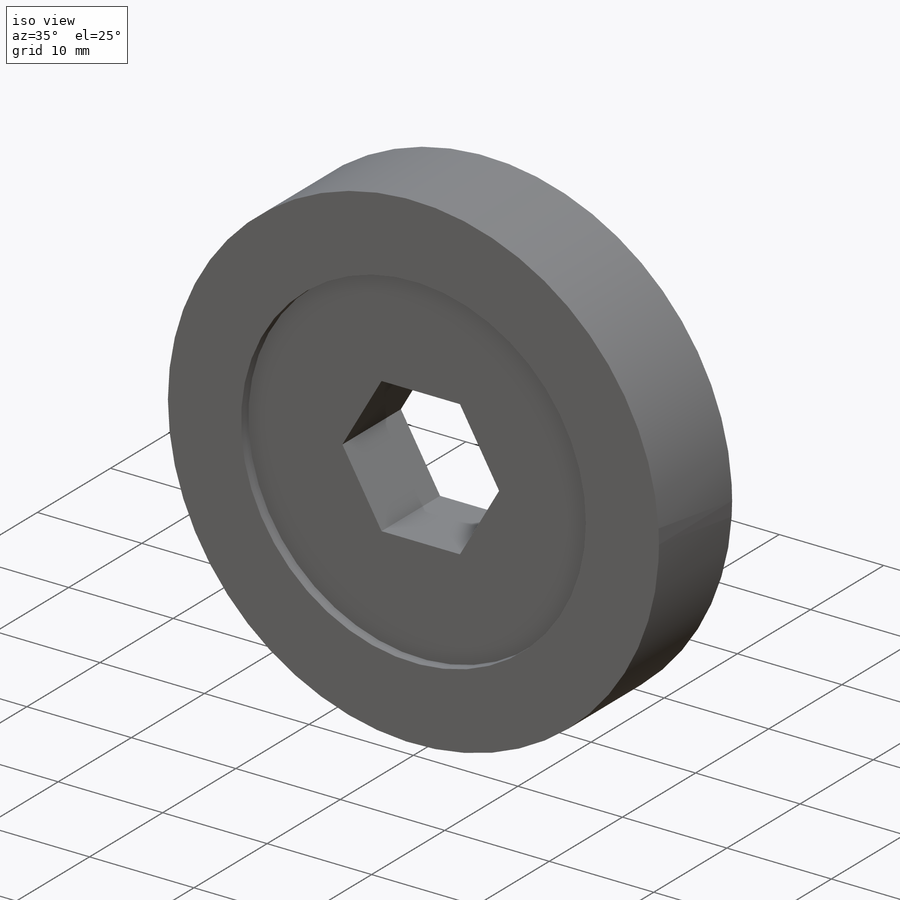
[diagram: iso view]
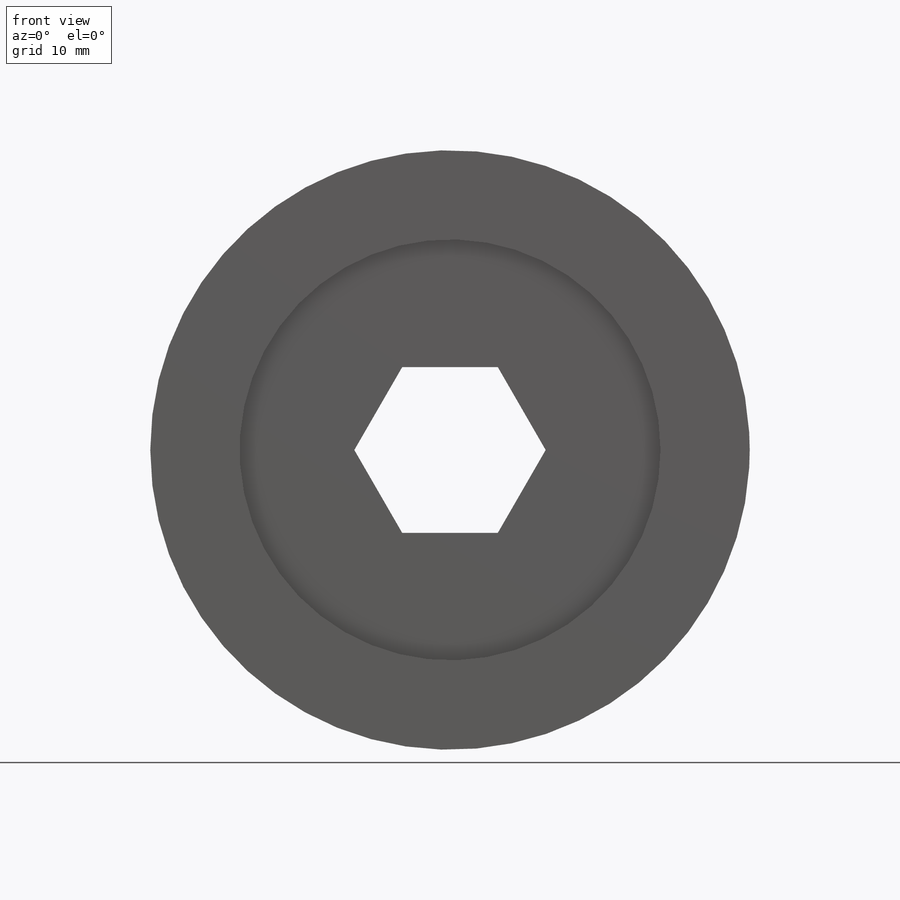
[diagram: front view]
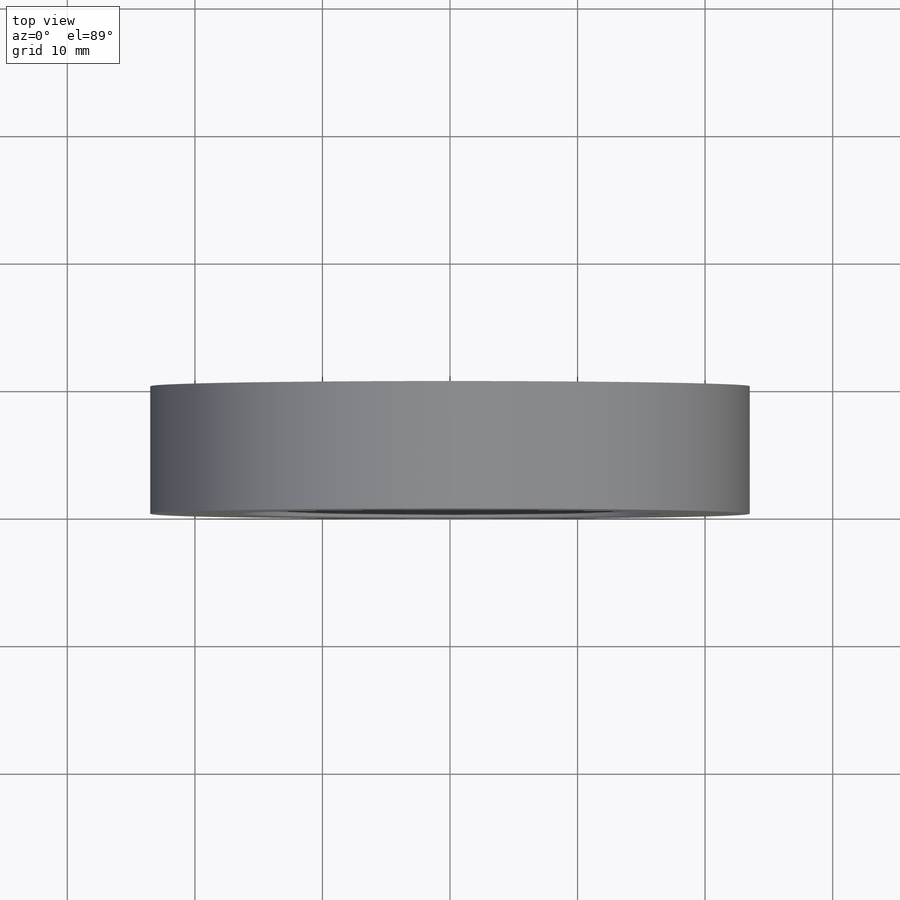
[diagram: top view]
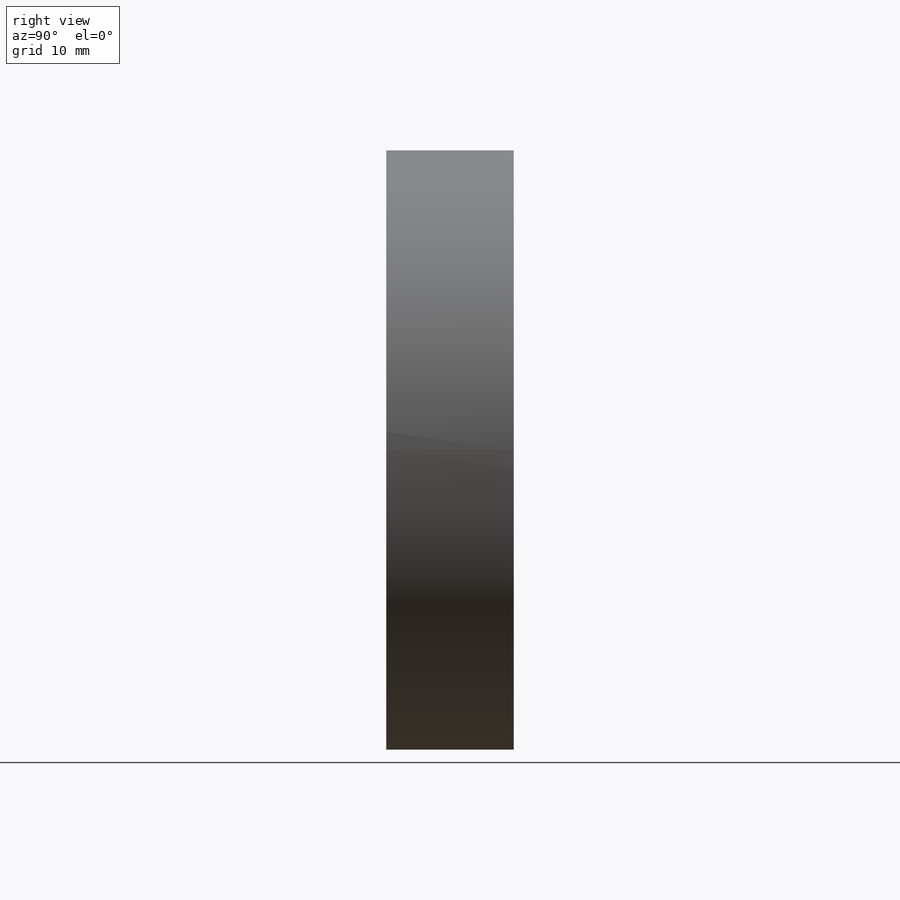
[diagram: right view]
SOLIDWORKS PART (.sldprt)
format: sldprt  version: not decoded by parser v0  size: 179,712 bytes
history: native  units: mm
features: plane x3, sketch x3, cut_extrude x2, material x1, extrude x1, mirror x1, pattern_linear x1 (+10 scaffold rows collapsed)
feature tree (22):
  scaffold x10  (default folders/planes/origin — collapsed)
  material  "Matériau <non spécifié>"
  plane  "Plan de face"
  plane  "Plan de dessus"
  plane  "Plan de droite"
  sketch  "Esquisse1"  dims[D1=47.0mm D2=6.0mm D3=~22.049115mm]
  extrude  "Boss.-Extru.1"  Depth=10mm
  sketch  "Esquisse3"  dims[c1.D1=15.0mm c1.D4=15.0mm c2.D1=15.0mm c2.D2=~15.597037mm c3.D2=60.0deg c3.D3=~12.016085mm c4.D3=60.0deg]
  cut_extrude  "Enlèv. mat.-Extru.1"  Depth=10mm
  mirror  "Symétrie1"
  sketch  "Esquisse4"  dims[D1=33.0mm]
  cut_extrude  "Enlèv. mat.-Extru.2"  Depth=1mm
  pattern_linear  "Répétition linéaire1"  Count1=2 Count2=1 Spacing1=9mm Spacing2=10mm
decode coverage: 7 of 8 modeling features carry decoded parameters
note: ~ marks probable driven/reference dimensions
note: suppression state not decoded; provenance and decode notes live in map.json
